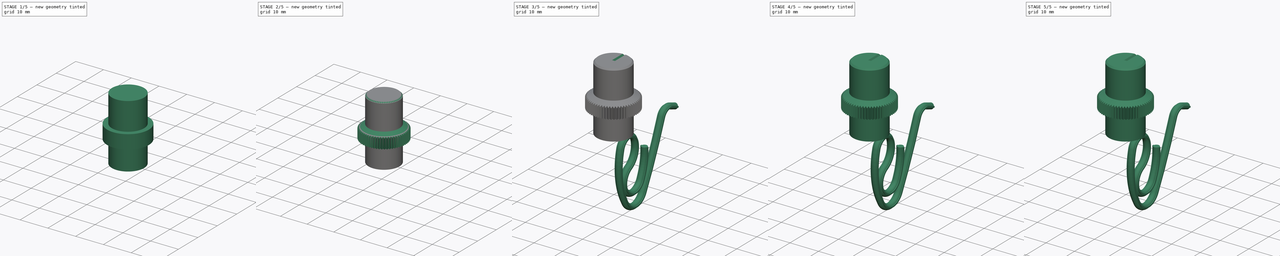
[diagram: build sequence overview — one tinted view per stage of 5, left to right]
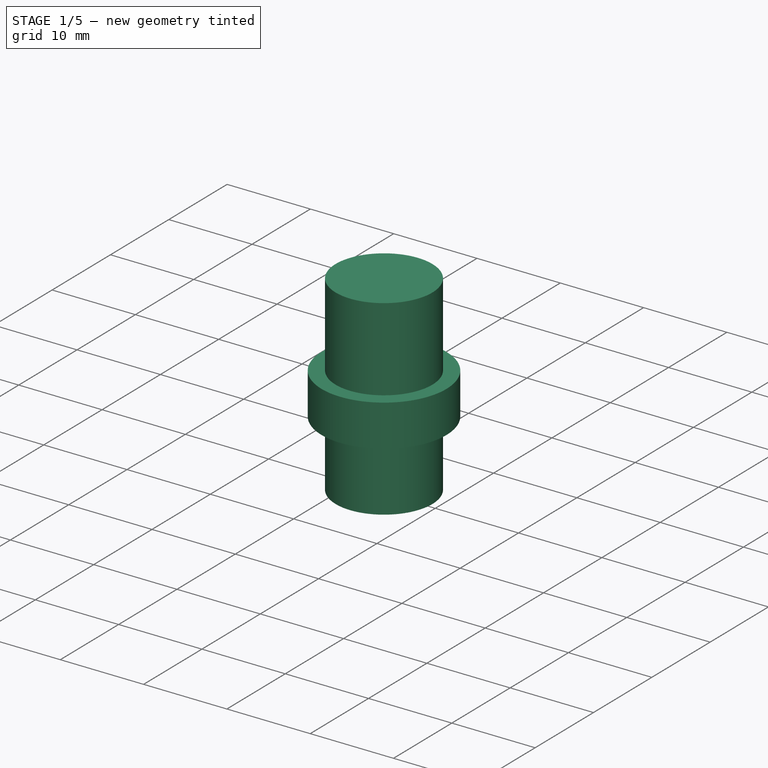
[diagram: stage 1 of 5 — iso view after this stage's code; geometry added in this stage tinted green]
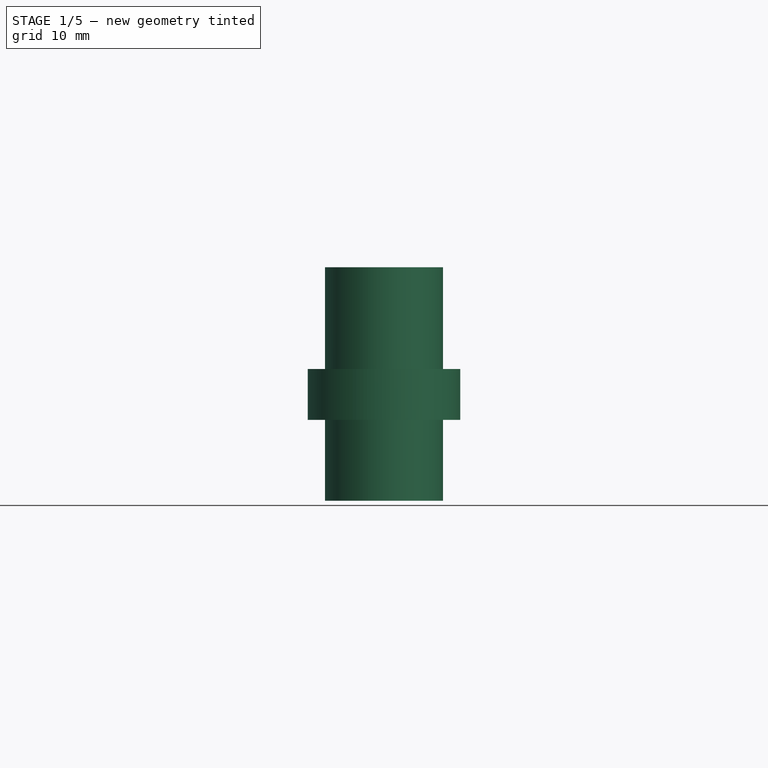
[diagram: stage 1 of 5 — front view after this stage's code; geometry added in this stage tinted green]
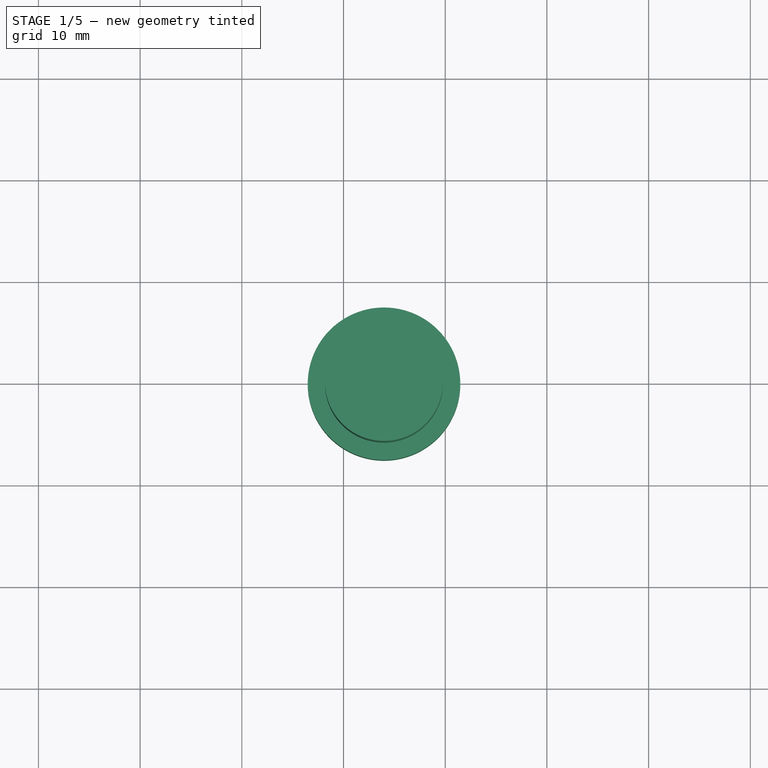
[diagram: stage 1 of 5 — top view after this stage's code; geometry added in this stage tinted green]
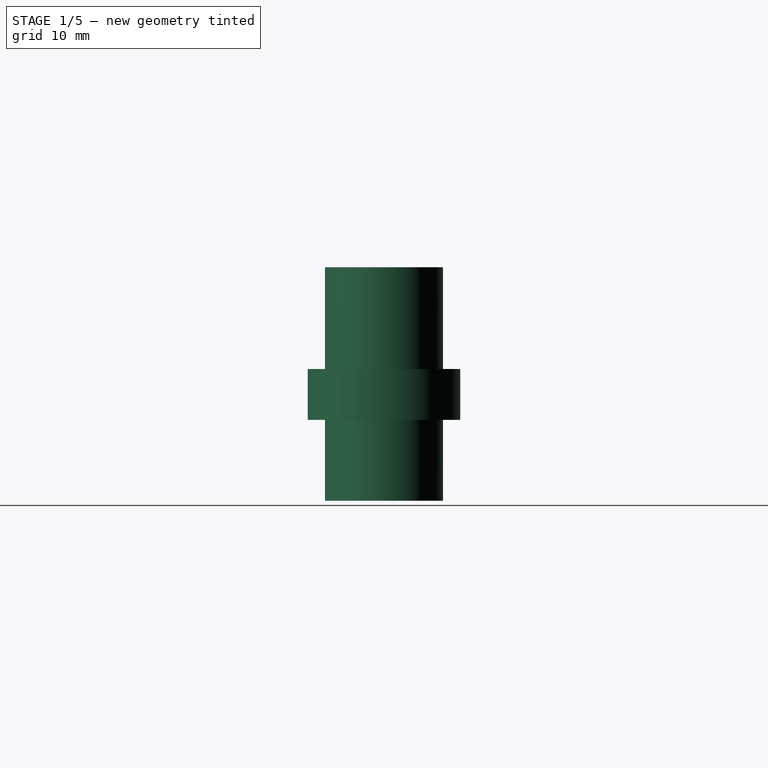
[diagram: stage 1 of 5 — right view after this stage's code; geometry added in this stage tinted green]
FCSTD DOCUMENT  (FreeCAD 1.0R39285 (Git))
Label: TheThing_v81_multiJoin_parts
License: CERN Open Hardware Licence permissive
LicenseURL: https://cern-ohl.web.cern.ch/
objects: Part::Feature×25, Sketcher::SketchObject×11, PartDesign::Body×11, PartDesign::FeatureBase×9, PartDesign::Pad×5, App::DocumentObjectGroup×4, PartDesign::Plane×3, PartDesign::SubShapeBinder×3, App::VRMLObject×2, App::Part×2, PartDesign::AdditivePipe×1, PartDesign::PolarPattern×1, PartDesign::Groove×1, PartDesign::Chamfer×1, PartDesign::SubtractivePipe×1
note: 111 computed .brp shape members not serialized (recipe doc carries the construction recipe); baked Part::Feature solids carry a one-line shape summary decoded from their .brp

FEATURE [PartDesign::Body] Body009
  AllowCompound = false
  Group = -> [Clone008]
  Origin = -> Origin051
  Placement = pos=(-22.86,0,0) rot=(0,0,1;0rad)
  Tip = -> Clone008
FEATURE [App::DocumentObjectGroup] Group003  label="Flat_Cable_10x"
  Group = -> [Body,Body001,Body002,Body003,Body004,Body005,Body006,Body007,Body008,Body009]
FEATURE [PartDesign::SubShapeBinder] Binder055
  BindCopyOnChange = 0
  BindMode = 0
  ClaimChildren = false
  Context = -> Body021 [Binder055.]
  Fuse = false
  MakeFace = true
  OffsetFill = false
  OffsetIntersection = false
  OffsetJoinType = 0
  OffsetOpenResult = false
  PartialLoad = false
  Refine = true
  Relative = true
  _Version = 2
FEATURE [PartDesign::SubShapeBinder] Binder056
  BindCopyOnChange = 0
  BindMode = 0
  ClaimChildren = false
  Context = -> Body021 [Binder056.]
  Fuse = false
  MakeFace = true
  OffsetFill = false
  OffsetIntersection = false
  OffsetJoinType = 0
  OffsetOpenResult = false
  PartialLoad = false
  Refine = true
  Relative = true
  _Version = 2
FEATURE [PartDesign::SubShapeBinder] Binder057
  BindCopyOnChange = 0
  BindMode = 0
  ClaimChildren = false
  Context = -> Body021 [Binder057.]
  Fuse = false
  MakeFace = true
  OffsetFill = false
  OffsetIntersection = false
  OffsetJoinType = 0
  OffsetOpenResult = false
  PartialLoad = false
  Refine = true
  Relative = true
  _Version = 2
FEATURE [Sketcher::SketchObject] Sketch055
  ArcFitTolerance = 1e-06
  AttachmentSupport = -> [Binder055]
  ExternalGeometry = -> [Binder055]
  FullyConstrained = true
  MakeInternals = false
  MapMode = 5
  Placement = pos=(0,0,3.145) rot=(0,0,1;0rad)
  sketch-geometry (4):
    g0: ArcOfCircle CenterX=13.98 CenterY=-50.184 CenterZ=0 NormalX=0 NormalY=0 NormalZ=1 AngleXU=0 Radius=3.2 StartAngle=2.27616 EndAngle=7.14862
    g1: LineSegment StartX=11.9054 StartY=-47.7476 StartZ=0 EndX=16.0546 EndY=-47.7476 EndZ=0
    g2: Circle CenterX=13.98 CenterY=-50.184 CenterZ=0 NormalX=0 NormalY=0 NormalZ=1 AngleXU=0 Radius=5.8
    g3: Circle [constr] CenterX=13.98 CenterY=-50.184 CenterZ=0 NormalX=0 NormalY=0 NormalZ=1 AngleXU=0 Radius=5.1
  constraints (10):
    c: Coincident(g0,g-3)
    c: Coincident(g1,g0)
    c: Coincident(g1,g0)
    c: Horizontal(g1)
    c: Diameter(g0) = 6.4
    c: Diameter(g2) = 11.6
    c: Coincident(g2,g0)
    c: Diameter(g3) = 10.2
    c: Coincident(g3,g0)
    c: PointOnObject(g-8,g1)
FEATURE [PartDesign::Pad] Pad036
  Direction = (0,0,1)
  Length = 1.75
  Length2 = 0.2
  Profile = -> Sketch055
  ReferenceAxis = -> Sketch055 [N_Axis]
  Refine = true
  Reversed = true
  Suppressed = false
  Type = 4
FEATURE [Sketcher::SketchObject] Sketch056
  ArcFitTolerance = 1e-06
  AttachmentSupport = -> [Pad036]
  ExternalGeometry = -> [Pad036]
  FullyConstrained = true
  MakeInternals = false
  MapMode = 5
  Placement = pos=(0,0,1.395) rot=(1,0,0;3.14159rad)
  sketch-geometry (2):
    g0: Circle CenterX=13.98 CenterY=50.184 CenterZ=0 NormalX=0 NormalY=0 NormalZ=1 AngleXU=0 Radius=5.8
    g1: Circle CenterX=13.98 CenterY=50.184 CenterZ=0 NormalX=0 NormalY=0 NormalZ=1 AngleXU=0 Radius=5.1
  constraints (4):
    c: Coincident(g0,g-3)
    c: Equal(g0,g-3)
    c: Diameter(g1) = 10.2
    c: Coincident(g1,g0)
FEATURE [PartDesign::Pad] Pad037
  BaseFeature = -> Pad036
  Direction = (0,0,-1)
  Length = 6
  Length2 = 10
  Profile = -> Sketch056
  ReferenceAxis = -> Sketch056 [N_Axis]
  Refine = true
  Suppressed = false
  Type = 0
FEATURE [Sketcher::SketchObject] Sketch057
  ArcFitTolerance = 1e-06
  AttachmentSupport = -> [Pad037]
  ExternalGeometry = -> [Pad037]
  FullyConstrained = true
  MakeInternals = false
  MapMode = 5
  Placement = pos=(0,0,3.345) rot=(0,0,1;0rad)
  sketch-geometry (1):
    g0: Circle CenterX=13.98 CenterY=-50.184 CenterZ=0 NormalX=0 NormalY=0 NormalZ=1 AngleXU=0 Radius=7.5
  constraints (2):
    c: Diameter(g0) = 15
    c: Coincident(g0,g-3)
FEATURE [PartDesign::Pad] Pad038
  BaseFeature = -> Pad037
  Direction = (0,0,1)
  Length = 5
  Length2 = 10
  Profile = -> Sketch057
  ReferenceAxis = -> Sketch057 [N_Axis]
  Refine = true
  Suppressed = false
  Type = 0
FEATURE [Sketcher::SketchObject] Sketch059
  ArcFitTolerance = 1e-06
  AttachmentSupport = -> [Pad038]
  ExternalGeometry = -> [Pad038]
  FullyConstrained = true
  MakeInternals = false
  MapMode = 5
  Placement = pos=(0,0,8.345) rot=(0,0,1;0rad)
  sketch-geometry (6):
    g0: LineSegment [constr] StartX=13.98 StartY=-50.184 StartZ=0 EndX=13.98 EndY=-57.684 EndZ=0
    g1: LineSegment StartX=13.5875 StartY=-57.6737 StartZ=0 EndX=14.3725 EndY=-57.6737 EndZ=0
    g2: LineSegment StartX=14.3725 StartY=-57.6737 StartZ=0 EndX=13.98 EndY=-58.3536 EndZ=0
    g3: LineSegment StartX=13.98 StartY=-58.3536 StartZ=0 EndX=13.5875 EndY=-57.6737 EndZ=0
    g4: LineSegment [constr] StartX=13.5875 StartY=-57.6737 StartZ=0 EndX=13.98 EndY=-50.184 EndZ=0
    g5: LineSegment [constr] StartX=13.98 StartY=-50.184 StartZ=0 EndX=14.3725 EndY=-57.6737 EndZ=0
  constraints (15):
    c: Coincident(g0,g-3)
    c: PointOnObject(g0,g-3)
    c: Vertical(g0)
    c: Coincident(g1,g2)
    c: Coincident(g2,g3)
    c: Coincident(g3,g1)
    c: Equal(g1,g2)
    c: Equal(g2,g3)
    c: Symmetric(g1,g1,g0)
    c: PointOnObject(g1,g-3)
    c: Coincident(g4,g1)
    c: Coincident(g4,g0)
    c: Coincident(g5,g0)
    c: Coincident(g5,g1)
    c: Angle(g4,g5) = 0.10472
FEATURE [Sketcher::SketchObject] Sketch060
  ArcFitTolerance = 1e-06
  AttachmentSupport = -> [Pad038]
  FullyConstrained = true
  MakeInternals = false
  MapMode = 5
  Placement = pos=(0,0,8.345) rot=(0,0,1;0rad)
  sketch-geometry (1):
    g0: Circle CenterX=13.98 CenterY=-50.184 CenterZ=0 NormalX=0 NormalY=0 NormalZ=1 AngleXU=0 Radius=5.8
  constraints (2):
    c: Coincident(g0,g-3)
    c: Equal(g0,g-3)
FEATURE [PartDesign::Pad] Pad039
  BaseFeature = -> Pad038
  Direction = (0,0,1)
  Length = 10
  Length2 = 10
  Profile = -> Sketch060
  ReferenceAxis = -> Sketch060 [N_Axis]
  Refine = true
  Suppressed = false
  Type = 0
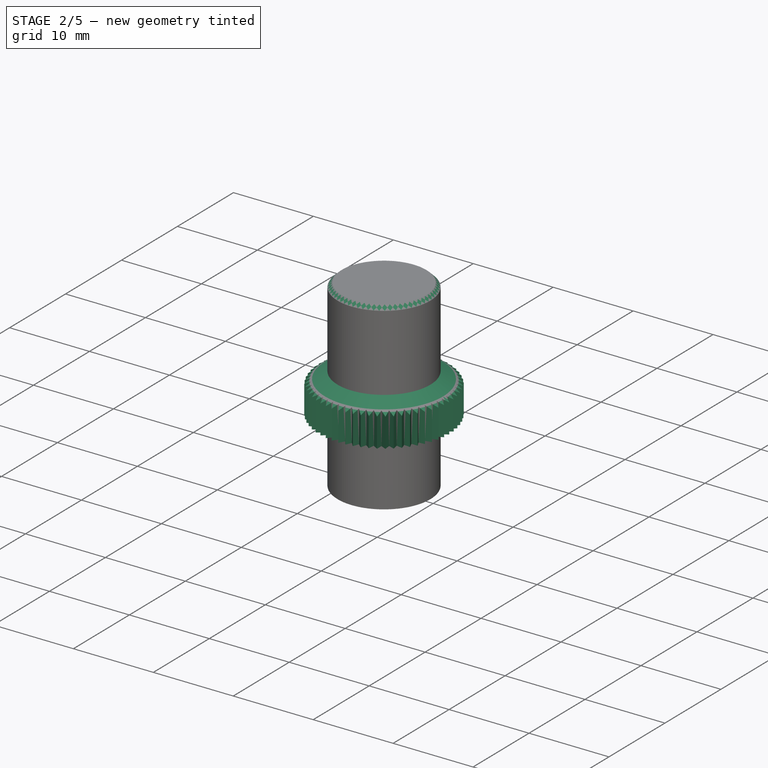
[diagram: stage 2 of 5 — iso view after this stage's code; geometry added in this stage tinted green]
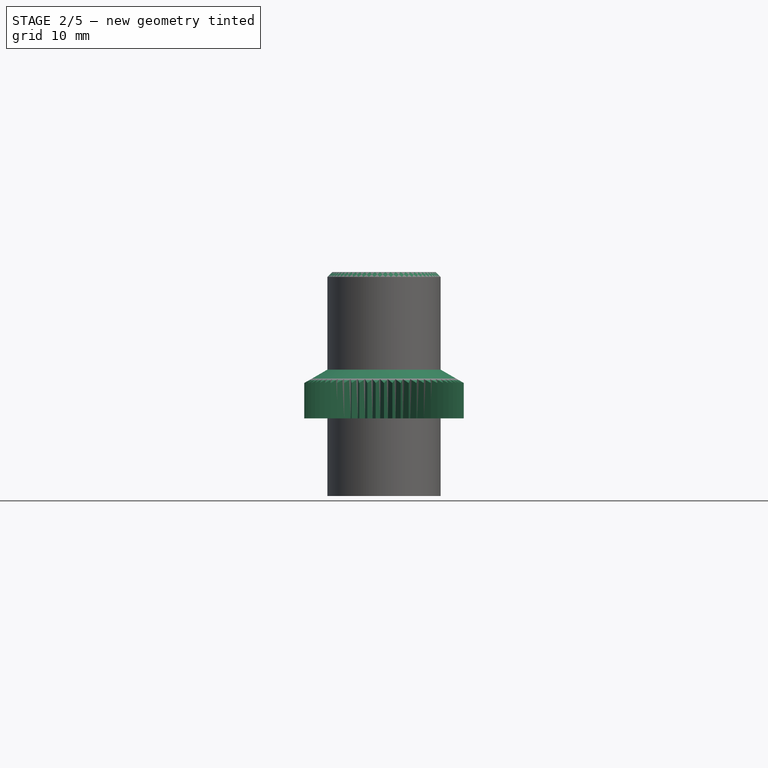
[diagram: stage 2 of 5 — front view after this stage's code; geometry added in this stage tinted green]
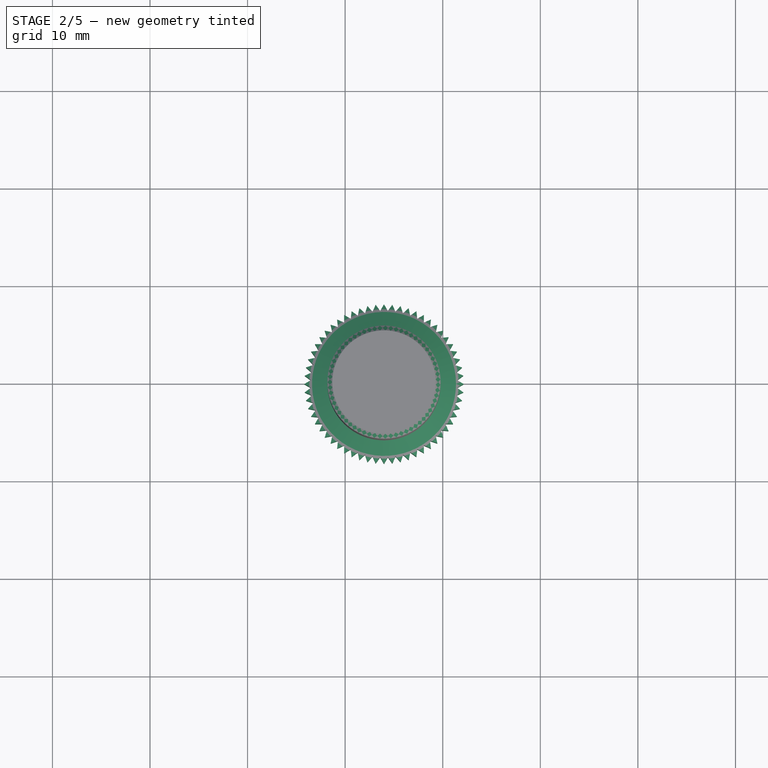
[diagram: stage 2 of 5 — top view after this stage's code; geometry added in this stage tinted green]
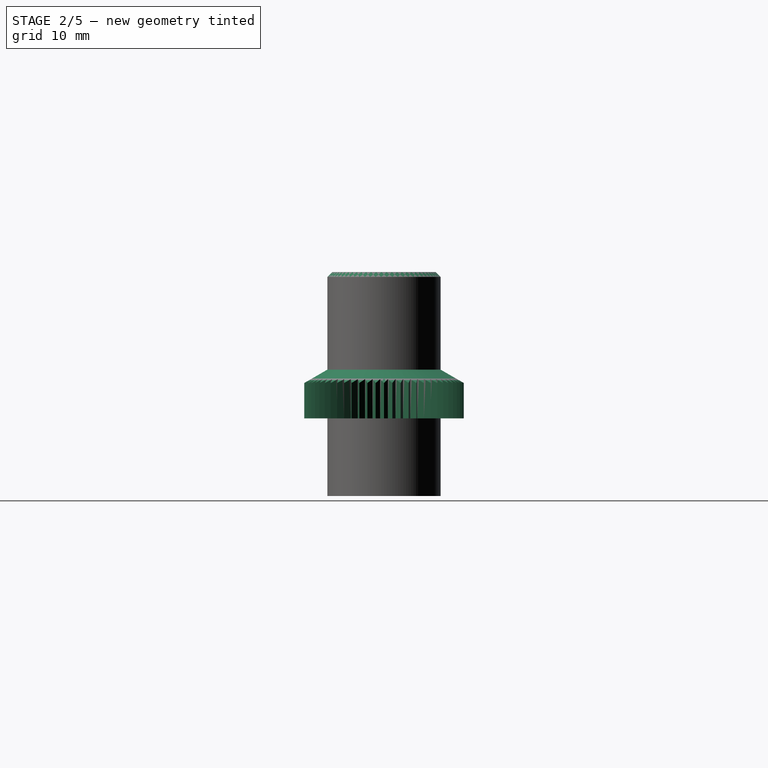
[diagram: stage 2 of 5 — right view after this stage's code; geometry added in this stage tinted green]
FEATURE [PartDesign::Pad] Pad040
  BaseFeature = -> Pad039
  Direction = (0,0,1)
  Length = 10
  Length2 = 10
  Profile = -> Sketch059
  ReferenceAxis = -> Sketch059 [N_Axis]
  Refine = true
  Reversed = true
  Suppressed = false
  Type = 3
  UpToFace = -> Pad039 [Face4]
FEATURE [PartDesign::PolarPattern] PolarPattern001
  Angle = 360
  Axis = -> Pad040 [Edge23]
  BaseFeature = -> Pad040
  Mode = 0
  Occurrences = 60
  Offset = 120
  Originals = -> [Pad040]
  Refine = true
  Suppressed = false
  TransformMode = 0
FEATURE [PartDesign::Plane] DatumPlane002
  AttachmentOffset = pos=(0,0,0) rot=(1,0,0;1.5708rad)
  AttachmentSupport = -> [PolarPattern001]
  Length = 60
  MapMode = 7
  Placement = pos=(19.78,-50.184,8.345) rot=(0,0.707107,-0.707107;3.14159rad)
  ResizeMode = 0
  Width = 60
FEATURE [Sketcher::SketchObject] Sketch061
  ArcFitTolerance = 1e-06
  AttachmentSupport = -> [DatumPlane002]
  ExternalGeometry = -> [PolarPattern001]
  FullyConstrained = true
  MakeInternals = false
  MapMode = 5
  Placement = pos=(19.78,-50.184,8.345) rot=(0,0.707107,-0.707107;3.14159rad)
  sketch-geometry (3):
    g0: LineSegment StartX=0 StartY=0 StartZ=0 EndX=-4.2 EndY=2.42487 EndZ=0
    g1: LineSegment StartX=-4.2 StartY=2.42487 StartZ=0 EndX=-4.2 EndY=0 EndZ=0
    g2: LineSegment StartX=-4.2 StartY=0 StartZ=0 EndX=0 EndY=0 EndZ=0
  constraints (8):
    c: Coincident(g0,g1)
    c: Vertical(g1)
    c: Coincident(g1,g2)
    c: Angle(g0,g-1) = 0.523599
    c: Coincident(g0,g2)
    c: Coincident(g0,g-4)
    c: PointOnObject(g1,g-1)
    c: DistanceX(g1,g0) = 4.2
FEATURE [PartDesign::Groove] Groove
  Angle = 360
  Angle2 = 60
  Axis = (0,0,1)
  Base = (13.98,-50.184,18.345)
  BaseFeature = -> PolarPattern001
  Profile = -> Sketch061
  ReferenceAxis = -> PolarPattern001 [Edge363]
  Refine = true
  Reversed = true
  Suppressed = false
  Type = 0
FEATURE [PartDesign::Chamfer] Chamfer004
  Angle = 45
  Base = -> Groove [Edge365]
  BaseFeature = -> Groove
  ChamferType = 0
  FlipDirection = false
  Refine = true
  Size = 0.5
  Size2 = 1
  SupportTransform = false
  Suppressed = false
  UseAllEdges = false
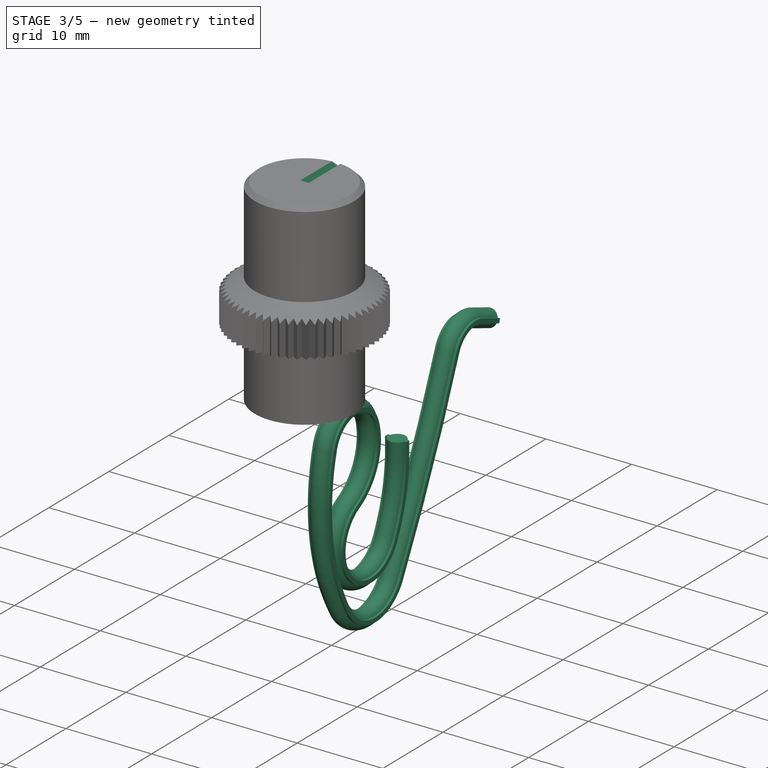
[diagram: stage 3 of 5 — iso view after this stage's code; geometry added in this stage tinted green]
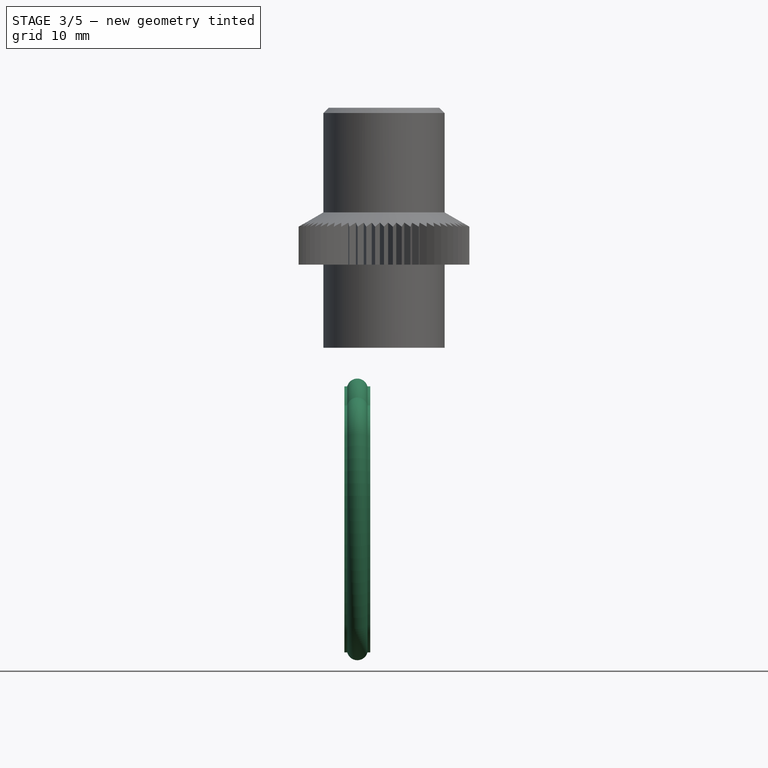
[diagram: stage 3 of 5 — front view after this stage's code; geometry added in this stage tinted green]
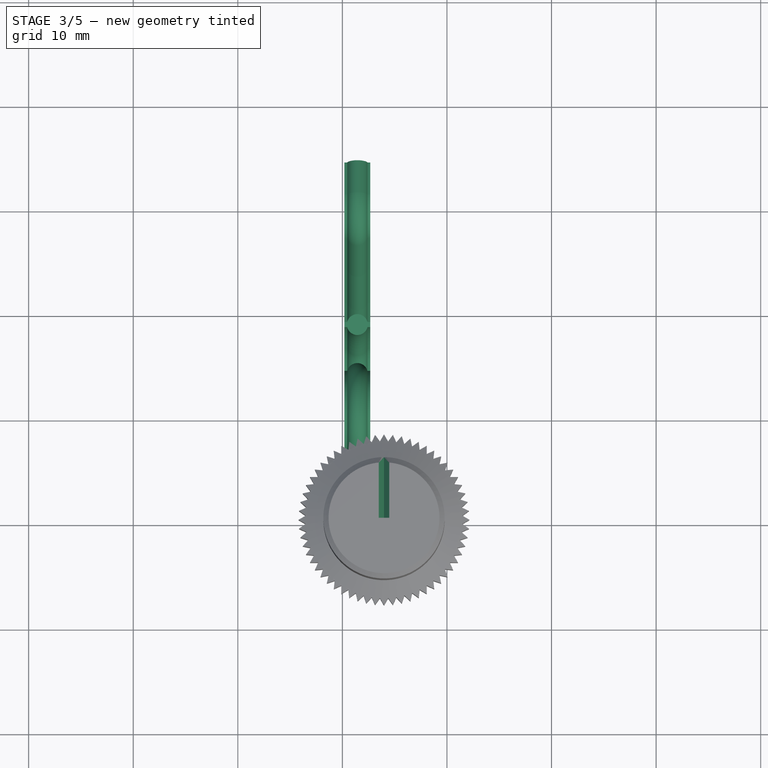
[diagram: stage 3 of 5 — top view after this stage's code; geometry added in this stage tinted green]
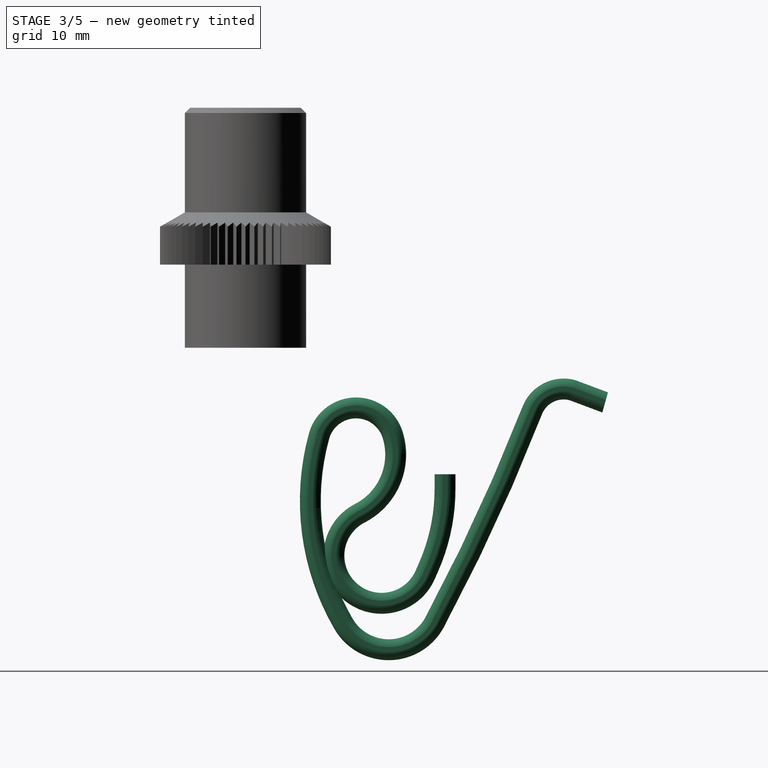
[diagram: stage 3 of 5 — right view after this stage's code; geometry added in this stage tinted green]
FEATURE [Part::Feature] Pad001_tab
  shape: bbox 2.8 x 80.6 x 100.6 mm, 98 faces (baked)
FEATURE [Part::Feature] Pad002_tab
  shape: bbox 2.8 x 80.6 x 100.6 mm, 86 faces (baked)
FEATURE [Part::Feature] Pocket_tab
  shape: bbox 75.6 x 2.8 x 104.6 mm, 110 faces (baked)
FEATURE [Part::Feature] Pocket016_tab
  shape: bbox 75.6 x 22.4 x 55.27 mm, 82 faces (baked)
FEATURE [Part::Feature] Pad018_tab
  shape: bbox 75.6 x 33.14 x 2.8 mm, 64 faces (baked)
FEATURE [Part::Feature] Pocket017_tab
  shape: bbox 75.6 x 2.8 x 44.6 mm, 118 faces (baked)
FEATURE [Part::Feature] Pocket021_tab
  shape: bbox 75.6 x 77.8 x 2.8 mm, 54 faces (baked)
FEATURE [Part::Feature] Fillet_tab
  shape: bbox 75.6 x 47.6 x 2.8 mm, 54 faces (baked)
FEATURE [Part::Feature] Pad016_tab
  shape: bbox 75.6 x 17.8 x 8.761 mm, 22 faces (baked)
FEATURE [Part::Feature] Body_right_clip_tab
  shape: bbox 2.8 x 90.2 x 110.2 mm, 46 faces (baked)
FEATURE [Part::Feature] Body_left_clip_tab
  Placement = pos=(-68.8,0,0) rot=(0,0,1;0rad)
  shape: bbox 2.8 x 90.2 x 110.2 mm, 46 faces (baked)
FEATURE [Part::Feature] Part__Feature001  label="switch_slide"
  shape: bbox 10.8 x 10.21 x 13.32 mm, 46 faces (baked)
FEATURE [Part::Feature] Part__Feature002  label="Stopper_bat"
  shape: bbox 2.8 x 15.6 x 14 mm, 30 faces (baked)
FEATURE [App::VRMLObject] TheThing_v8_main
  Placement = pos=(0,5.3,13.8) rot=(1,0,0;1.22173rad)
FEATURE [App::VRMLObject] TheThing_v8_addon
  Placement = pos=(0,-43.6,-5.2) rot=(0,0,1;0rad)
FEATURE [Part::Feature] Part__Feature003  label="hc-sr04"
  Placement = pos=(0,-52.3,-24.1) rot=(0,0,1;3.14159rad)
  shape: bbox 45.2 x 18.55 x 25.81 mm, 1464 faces (baked)
FEATURE [Part::Feature] Part__Feature004  label="User Library-9V Duracell Battery"
  shape: bbox 25.33 x 0.8457 x 15.74 mm, 1 faces, 0 solids (baked)
FEATURE [Part::Feature] Part__Feature005  label="User Library-9V Duracell Battery001"
  shape: bbox 24.78 x 2e-07 x 15.38 mm, 1 faces, 0 solids (baked)
FEATURE [Part::Feature] Part__Feature006  label="User Library-9V Duracell Battery002"
  shape: bbox 26 x 42.82 x 16.6 mm, 188 faces, 0 solids (baked)
FEATURE [Part::Feature] Part__Feature007  label="User Library-9V Duracell Battery003"
  shape: bbox 8.776 x 3 x 7.6 mm, 28 faces, 0 solids (baked)
FEATURE [Part::Feature] Part__Feature008  label="User Library-9V Duracell Battery004"
  shape: bbox 6.35 x 1.5 x 6.35 mm, 2 faces, 0 solids (baked)
FEATURE [Part::Feature] Part__Feature009  label="User Library-9V Duracell Battery005"
  shape: bbox 8 x 3.2 x 8 mm, 10 faces, 0 solids (baked)
FEATURE [App::Part] User_Library_9V_Duracell_Battery  label="9V Duracell Battery006"
  Group = -> [Part__Feature004,Part__Feature005,Part__Feature006,Part__Feature007,Part__Feature008,Part__Feature009]
  Origin = -> Origin
  Placement = pos=(0,0.6,-26) rot=(0,0,1;0rad)
FEATURE [Part::Feature] Part__Feature951  label="_68005_cp005_cp"
  shape: bbox 13.59 x 26.29 x 1.575 mm, 25 faces (baked)
FEATURE [Part::Feature] Part__Feature954  label="_68005_cp005_cp003"
  shape: bbox 7.925 x 7.925 x 3.557 mm, 30 faces (baked)
FEATURE [Part::Feature] Part__Feature955  label="_68005_cp005_cp004"
  shape: bbox 9.35 x 9.35 x 4.186 mm, 132 faces (baked)
FEATURE [App::Part] _68005_cp005_cp  label="9V_conn"
  Group = -> [Part__Feature951,Part__Feature954,Part__Feature955]
  Origin = -> Origin041
  Placement = pos=(-2.41e-14,30,-26) rot=(0.57735,-0.57735,-0.57735;4.18879rad)
FEATURE [App::DocumentObjectGroup] Group  label="Acrylic_Parts"
  Group = -> [Pad001_tab,Pad002_tab,Pocket_tab,Pocket016_tab,Pad018_tab,Pocket017_tab,Pocket021_tab,Fillet_tab,Pad016_tab,Body_right_clip_tab,Body_left_clip_tab]
FEATURE [App::DocumentObjectGroup] Group001  label="Electronic_Parts"
  Group = -> [TheThing_v8_main,TheThing_v8_addon,Part__Feature003,User_Library_9V_Duracell_Battery,_68005_cp005_cp]
FEATURE [Sketcher::SketchObject] Sketch
  ArcFitTolerance = 1e-06
  AttachmentOffset = pos=(0,0,11.43) rot=(0,0,1;0rad)
  AttachmentSupport = -> [YZ_Plane042]
  FullyConstrained = false
  MakeInternals = false
  MapMode = 5
  Placement = pos=(11.43,0,0) rot=(0.57735,0.57735,0.57735;2.0944rad)
  sketch-geometry (10):
    g0: LineSegment StartX=-16.0018 StartY=-10.3753 StartZ=0 EndX=-19.3517 EndY=-9.12639 EndZ=0
    g1: ArcOfCircle CenterX=-20.2949 CenterY=-11.6563 CenterZ=0 NormalX=0 NormalY=0 NormalZ=1 AngleXU=0 Radius=2.7 StartAngle=1.21393 EndAngle=2.79324
    g2: ArcOfCircle CenterX=-98.0276 CenterY=16.5734 CenterZ=0 NormalX=0 NormalY=0 NormalZ=1 AngleXU=0 Radius=80 StartAngle=5.64377 EndAngle=5.93483
    g3: ArcOfCircle CenterX=-37.0419 CenterY=-28.7779 CenterZ=0 NormalX=0 NormalY=0 NormalZ=1 AngleXU=0 Radius=4 StartAngle=3.76697 EndAngle=5.64377
    g4: ArcOfCircle CenterX=-20.0163 CenterY=-16.4845 CenterZ=0 NormalX=0 NormalY=0 NormalZ=1 AngleXU=0 Radius=25 StartAngle=2.91169 EndAngle=3.76697
    g5: ArcOfCircle CenterX=-41.4374 CenterY=-11.471 CenterZ=0 NormalX=0 NormalY=0 NormalZ=1 AngleXU=0 Radius=3 StartAngle=0.810387 EndAngle=2.91169
    g6: ArcOfCircle CenterX=-45.2281 CenterY=-15.4561 CenterZ=0 NormalX=0 NormalY=0 NormalZ=1 AngleXU=0 Radius=8.5 StartAngle=5.51939 EndAngle=7.09357
    g7: ArcOfCircle CenterX=-36.2004 CenterY=-24.102 CenterZ=0 NormalX=0 NormalY=0 NormalZ=1 AngleXU=0 Radius=4 StartAngle=2.37779 EndAngle=5.7039
    g8: LineSegment StartX=-31.0981 StartY=-20.4032 StartZ=0 EndX=-31.0981 EndY=-16.8824 EndZ=0
    g9: ArcOfCircle CenterX=-41.8547 CenterY=-20.4032 CenterZ=0 NormalX=0 NormalY=0 NormalZ=1 AngleXU=0 Radius=10.7566 StartAngle=5.7039 EndAngle=6.28319
  constraints (21):
    c: Tangent(g0,g1) = -1.5708
    c: Tangent(g1,g2) = 1.5708
    c: Tangent(g2,g3) = -1.5708
    c: Tangent(g3,g4) = -1.5708
    c: Tangent(g4,g5) = -1.5708
    c: Tangent(g5,g6) = -1.5708
    c: Tangent(g6,g7) = 1.5708
    c: Vertical(g8)
    c: DistanceX(g0) = -19.3517
    c: DistanceY(g0) = -9.12639
    c: Radius(g1) = 2.7
    c: Radius(g2) = 80
    c: Radius(g3) = 4
    c: Radius(g4) = 25
    c: Radius(g5) = 3
    c: Radius(g6) = 8.5
    c: Radius(g7) = 4
    c: DistanceX(g8) = -31.0981
    c: DistanceY(g8) = -16.8824
    c: Tangent(g9,g8) = -1.5708
    c: Tangent(g9,g7) = -1.5708
FEATURE [Part::Feature] Part__Feature956  label="PinSocket_1x10_P2.54mm_Vertical"
  Placement = pos=(-11.4,-16.0152,-10.4002) rot=(-0.633687,0.633687,0.443713;2.30637rad)
  shape: bbox 25.4 x 11.37 x 5.294 mm, 270 faces (baked)
FEATURE [Part::Feature] Part__Feature957  label="PinSocket_1x10_P2.54mm_Vertical001"
  Placement = pos=(-11.4,-31.1152,-17.0002) rot=(0,0,-1;4.71239rad)
  shape: bbox 25.4 x 2.54 x 11.6 mm, 270 faces (baked)
FEATURE [PartDesign::Plane] DatumPlane
  AttachmentOffset = pos=(0,-16.7,0) rot=(1,0,0;1.5708rad)
  AttachmentSupport = -> [Sketch]
  Length = 81.7809
  MapMode = 2
  Placement = pos=(11.43,0,-16.7) rot=(0.707107,0.707107,0;3.14159rad)
  ResizeMode = 0
  Width = 61.8282
FEATURE [Sketcher::SketchObject] Sketch001
  ArcFitTolerance = 1e-06
  AttachmentSupport = -> [DatumPlane]
  FullyConstrained = true
  MakeInternals = false
  MapMode = 5
  Placement = pos=(11.43,0,-16.7) rot=(0.707107,0.707107,0;3.14159rad)
  sketch-geometry (9):
    g0: ArcOfCircle CenterX=-31.1 CenterY=0 CenterZ=0 NormalX=0 NormalY=0 NormalZ=1 AngleXU=0 Radius=1 StartAngle=1.82348 EndAngle=4.45971
    g1: LineSegment StartX=-30.85 StartY=-1.23825 StartZ=0 EndX=-30.85 EndY=-0.968246 EndZ=0
    g2: LineSegment StartX=-30.85 StartY=1.23825 StartZ=0 EndX=-31.35 EndY=1.23825 EndZ=0
    g3: LineSegment StartX=-31.35 StartY=1.23825 StartZ=0 EndX=-31.35 EndY=0.968246 EndZ=0
    g4: LineSegment StartX=-31.35 StartY=-1.23825 StartZ=0 EndX=-30.85 EndY=-1.23825 EndZ=0
    g5: GeomPoint [constr] X=-31.1 Y=0 Z=0
    g6: ArcOfCircle CenterX=-31.1 CenterY=0 CenterZ=0 NormalX=0 NormalY=0 NormalZ=1 AngleXU=0 Radius=1 StartAngle=4.96507 EndAngle=7.6013
    g7: LineSegment StartX=-31.35 StartY=-0.968246 StartZ=0 EndX=-31.35 EndY=-1.23825 EndZ=0
    g8: LineSegment StartX=-30.85 StartY=0.968246 StartZ=0 EndX=-30.85 EndY=1.23825 EndZ=0
  constraints (27):
    c: Diameter(g0) = 2
    c: Distance(g0,g-2) = 31.1
    c: PointOnObject(g0,g-1)
    c: Coincident(g8,g2)
    c: Coincident(g2,g3)
    c: Coincident(g7,g4)
    c: Coincident(g4,g1)
    c: Vertical(g1)
    c: Vertical(g3)
    c: Horizontal(g2)
    c: Horizontal(g4)
    c: Symmetric(g3,g1,g5)
    c: Coincident(g5,g0)
    c: Distance(g2,g2) = 0.5
    c: PointOnObject(g6,g8)
    c: Equal(g0,g6)
    c: PointOnObject(g0,g7)
    c: Coincident(g0,g6)
    c: Coincident(g3,g0)
    c: PointOnObject(g7,g0)
    c: Coincident(g1,g6)
    c: PointOnObject(g8,g6)
    c: Equal(g7,g3)
    c: DistanceY(g3,g3) = 0.27
    c: Vertical(g8)
    c: Vertical(g7)
    c: Equal(g4,g2)
FEATURE [Sketcher::SketchObject] Sketch002
  ArcFitTolerance = 1e-06
  AttachmentSupport = -> [YZ_Plane042]
  ExternalGeometry = -> [Sketch001]
  FullyConstrained = false
  MakeInternals = false
  MapMode = 5
  Placement = pos=(0,0,0) rot=(0.57735,0.57735,0.57735;2.0944rad)
  sketch-geometry (11):
    g0: LineSegment StartX=-31.725 StartY=-16.7 StartZ=0 EndX=-31.725 EndY=-18.1086 EndZ=0
    g1: ArcOfCircle CenterX=-49.6106 CenterY=-18.1086 CenterZ=0 NormalX=0 NormalY=0 NormalZ=1 AngleXU=0 Radius=17.8856 StartAngle=5.87083 EndAngle=6.28319
    g2: LineSegment StartX=-33.2241 StartY=-25.2765 StartZ=0 EndX=-33.565 EndY=-26.0557 EndZ=0
    g3: ArcOfCircle CenterX=-37.1674 CenterY=-24.4799 CenterZ=0 NormalX=0 NormalY=0 NormalZ=1 AngleXU=0 Radius=3.93203 StartAngle=2.04472 EndAngle=5.87083
    g4: ArcOfCircle CenterX=-42.1253 CenterY=-14.8137 CenterZ=0 NormalX=0 NormalY=0 NormalZ=1 AngleXU=0 Radius=6.93145 StartAngle=5.18631 EndAngle=6.58854
    g5: ArcOfCircle CenterX=-39.6091 CenterY=-14.0206 CenterZ=0 NormalX=0 NormalY=0 NormalZ=1 AngleXU=0 Radius=4.29316 StartAngle=0.30535 EndAngle=2.87372
    g6: ArcOfCircle CenterX=-20.6035 CenterY=-19.2371 CenterZ=0 NormalX=0 NormalY=0 NormalZ=1 AngleXU=0 Radius=24.0016 StartAngle=2.87372 EndAngle=3.66866
    g7: ArcOfCircle CenterX=-36.4922 CenterY=-28.4841 CenterZ=0 NormalX=0 NormalY=0 NormalZ=1 AngleXU=0 Radius=5.61802 StartAngle=3.66866 EndAngle=5.79204
    g8: ArcOfCircle CenterX=-198.028 CenterY=57.9154 CenterZ=0 NormalX=0 NormalY=0 NormalZ=1 AngleXU=0 Radius=188.808 StartAngle=5.79204 EndAngle=5.91054
    g9: ArcOfCircle CenterX=-19.756 CenterY=-11.7725 CenterZ=0 NormalX=0 NormalY=0 NormalZ=1 AngleXU=0 Radius=2.60032 StartAngle=1.29713 EndAngle=2.76895
    g10: LineSegment StartX=-19.0533 StartY=-9.26896 StartZ=0 EndX=-15.958 EndY=-10.4308 EndZ=0
  constraints (12):
    c: Symmetric(g-3,g-3,g0)
    c: Vertical(g0)
    c: Tangent(g0,g1) = 1.5708
    c: Tangent(g2,g3) = 1.5708
    c: Tangent(g3,g4) = 1.5708
    c: Tangent(g4,g5) = -1.5708
    c: Tangent(g5,g6) = -1.5708
    c: Tangent(g6,g7) = -1.5708
    c: Tangent(g7,g8) = -1.5708
    c: Tangent(g8,g9) = 1.5708
    c: Coincident(g9,g10)
    c: Tangent(g1,g2) = 1.5708
FEATURE [PartDesign::AdditivePipe] AdditivePipe
  AuxilleryCurvelinear = true
  AuxillerySpineTangent = false
  Binormal = (0,0,0)
  Mode = 0
  Placement = pos=(11.43,0,-16.7) rot=(0.707107,0.707107,0;3.14159rad)
  Profile = -> Sketch001
  Refine = true
  Spine = -> Sketch002
  SpineTangent = false
  Suppressed = false
  Transformation = 0
  Transition = 0
FEATURE [PartDesign::Body] Body008
  AllowCompound = false
  Group = -> [Clone007]
  Origin = -> Origin050
  Placement = pos=(-20.32,0,0) rot=(0,0,1;0rad)
  Tip = -> Clone007
FEATURE [PartDesign::FeatureBase] Clone008
  BaseFeature = -> Body
  Suppressed = false
FEATURE [Sketcher::SketchObject] Sketch062
  ArcFitTolerance = 1e-06
  AttachmentSupport = -> [Chamfer004]
  ExternalGeometry = -> [Chamfer004]
  FullyConstrained = true
  MakeInternals = false
  MapMode = 5
  Placement = pos=(0,0,18.345) rot=(0,0,1;0rad)
  sketch-geometry (1):
    g0: LineSegment StartX=13.98 StartY=-50.184 StartZ=0 EndX=13.98 EndY=-43.784 EndZ=0
  constraints (3):
    c: Coincident(g0,g-3)
    c: Vertical(g0)
    c: DistanceY(g0,g0) = 6.4
FEATURE [PartDesign::Plane] DatumPlane003
  AttachmentSupport = -> [Sketch062]
  Length = 60
  MapMode = 7
  Placement = pos=(13.98,-50.184,18.345) rot=(1,0,0;1.5708rad)
  ResizeMode = 0
  Width = 60
FEATURE [Sketcher::SketchObject] Sketch063
  ArcFitTolerance = 1e-06
  AttachmentSupport = -> [DatumPlane003]
  ExternalGeometry = -> [Chamfer004]
  FullyConstrained = true
  MakeInternals = false
  MapMode = 5
  Placement = pos=(13.98,-50.184,18.345) rot=(1,0,0;1.5708rad)
  sketch-geometry (4):
    g0: LineSegment StartX=0 StartY=-0.866025 StartZ=0 EndX=0.5 EndY=0 EndZ=0
    g1: LineSegment StartX=0.5 StartY=0 StartZ=0 EndX=-0.5 EndY=0 EndZ=0
    g2: LineSegment StartX=-0.5 StartY=0 StartZ=0 EndX=0 EndY=-0.866025 EndZ=0
    g3: Circle [constr] CenterX=-4.39e-14 CenterY=-0.288675 CenterZ=0 NormalX=0 NormalY=0 NormalZ=1 AngleXU=0 Radius=0.57735
  constraints (12):
    c: Coincident(g0,g1)
    c: Coincident(g1,g2)
    c: Coincident(g2,g0)
    c: Equal(g0,g1)
    c: Equal(g0,g2)
    c: PointOnObject(g0,g3)
    c: PointOnObject(g1,g3)
    c: PointOnObject(g2,g3)
    c: PointOnObject(g0,g-2)
    c: Horizontal(g1)
    c: PointOnObject(g1,g-3)
    c: DistanceX(g1,g1) = 1
FEATURE [PartDesign::SubtractivePipe] SubtractivePipe
  AuxilleryCurvelinear = true
  AuxillerySpineTangent = false
  BaseFeature = -> Chamfer004
  Binormal = (0,0,0)
  Mode = 0
  Profile = -> Sketch063
  Refine = true
  Spine = -> Sketch062 [Edge1]
  SpineTangent = false
  Suppressed = false
  Transformation = 0
  Transition = 0
FEATURE [PartDesign::Body] Body021  label="trimpot_knob_v3"
  AllowCompound = false
  Group = -> [Binder055,Sketch055,Pad036,Binder056,Binder057,Sketch056,Pad037,Sketch057,Pad038,Sketch059,Sketch060,Pad039,Pad040,PolarPattern001,DatumPlane002,Sketch061,Groove,Chamfer004,Sketch062,DatumPlane003,Sketch063,SubtractivePipe]
  Origin = -> Origin132
  Tip = -> SubtractivePipe
FEATURE [App::DocumentObjectGroup] Group002  label="3DP_parts"
  Group = -> [Part__Feature001,Part__Feature002,Body021]
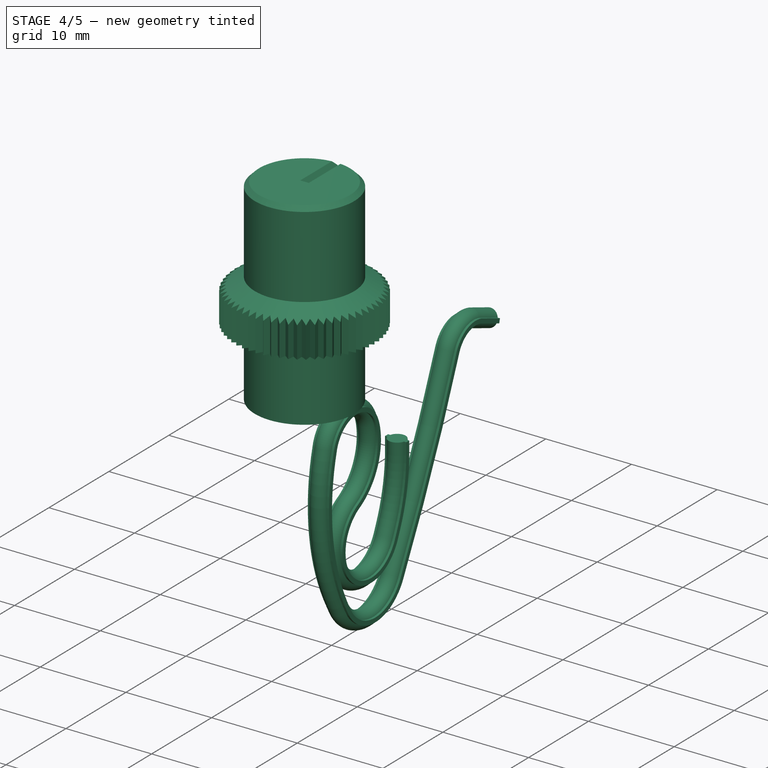
[diagram: stage 4 of 5 — iso view after this stage's code; geometry added in this stage tinted green]
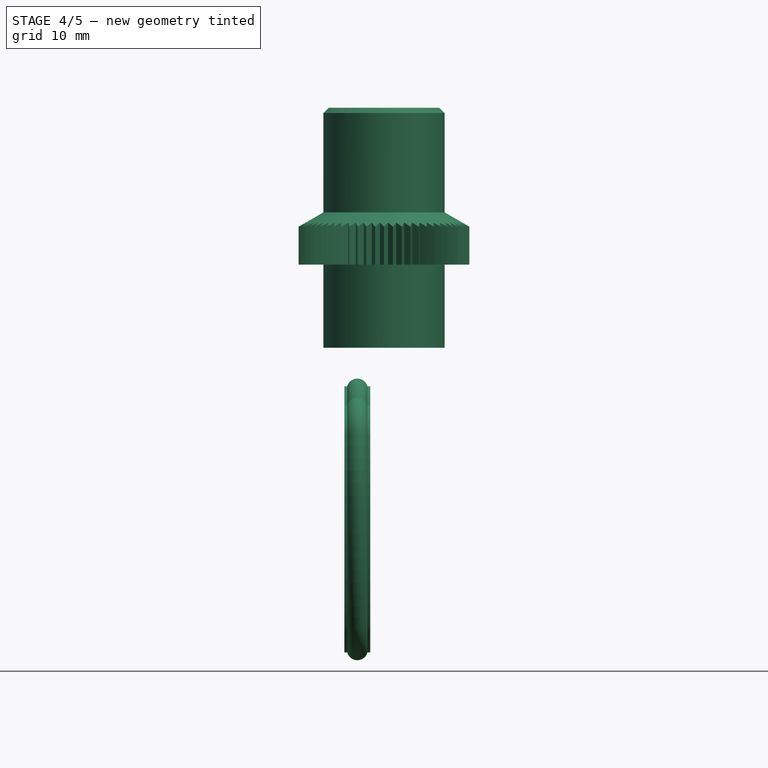
[diagram: stage 4 of 5 — front view after this stage's code; geometry added in this stage tinted green]
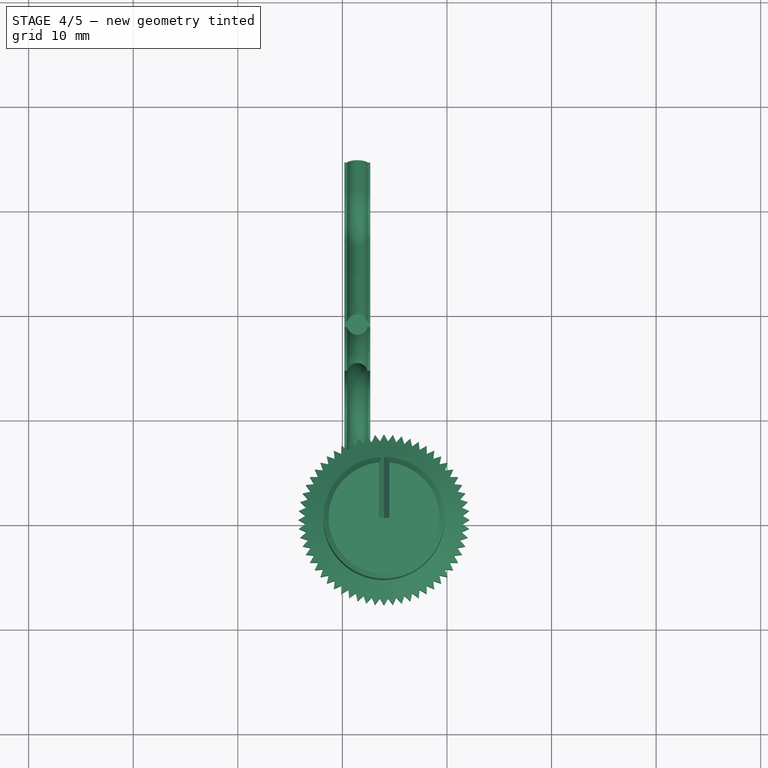
[diagram: stage 4 of 5 — top view after this stage's code; geometry added in this stage tinted green]
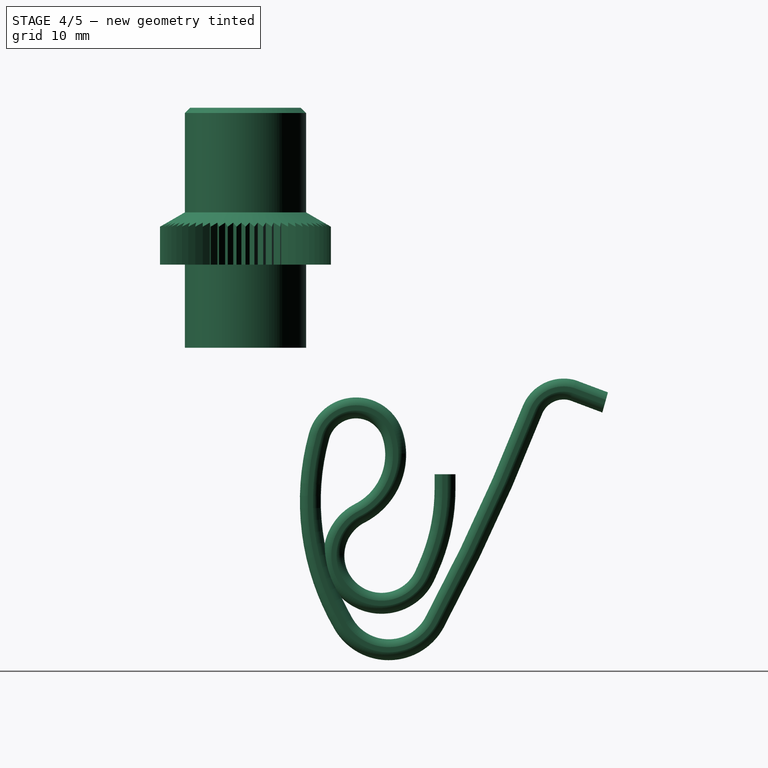
[diagram: stage 4 of 5 — right view after this stage's code; geometry added in this stage tinted green]
FEATURE [PartDesign::Body] Body004
  AllowCompound = false
  Group = -> [Clone003]
  Origin = -> Origin046
  Placement = pos=(-10.16,0,0) rot=(0,0,1;0rad)
  Tip = -> Clone003
FEATURE [PartDesign::FeatureBase] Clone004
  BaseFeature = -> Body
  Suppressed = false
FEATURE [PartDesign::Body] Body005
  AllowCompound = false
  Group = -> [Clone004]
  Origin = -> Origin047
  Placement = pos=(-12.7,0,0) rot=(0,0,1;0rad)
  Tip = -> Clone004
FEATURE [PartDesign::FeatureBase] Clone005
  BaseFeature = -> Body
  Suppressed = false
FEATURE [PartDesign::Body] Body006
  AllowCompound = false
  Group = -> [Clone005]
  Origin = -> Origin048
  Placement = pos=(-15.24,0,0) rot=(0,0,1;0rad)
  Tip = -> Clone005
FEATURE [PartDesign::FeatureBase] Clone006
  BaseFeature = -> Body
  Suppressed = false
FEATURE [PartDesign::Body] Body007
  AllowCompound = false
  Group = -> [Clone006]
  Origin = -> Origin049
  Placement = pos=(-17.78,0,0) rot=(0,0,1;0rad)
  Tip = -> Clone006
FEATURE [PartDesign::FeatureBase] Clone007
  BaseFeature = -> Body
  Suppressed = false
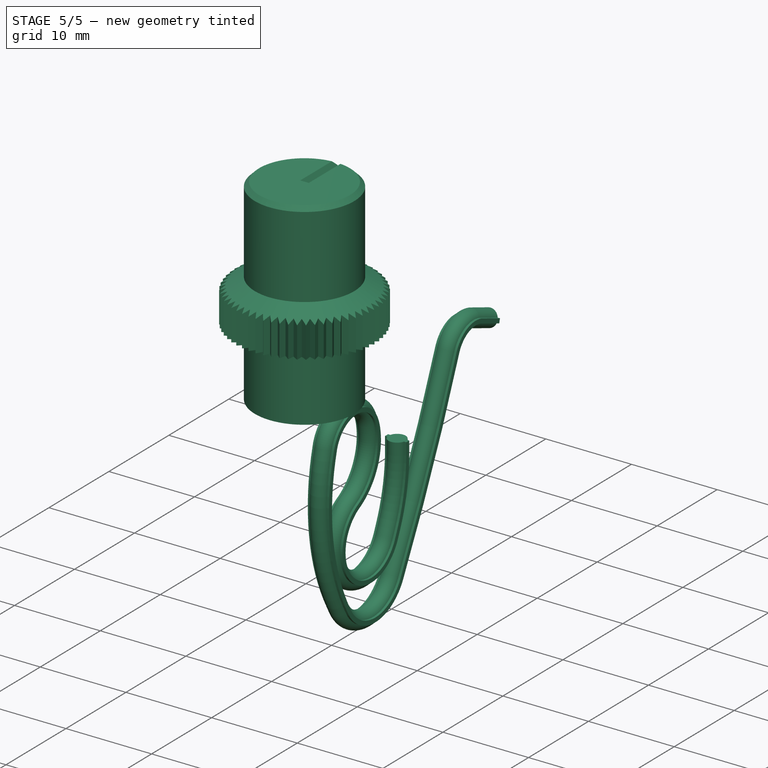
[diagram: stage 5 of 5 — iso view after this stage's code; geometry added in this stage tinted green]
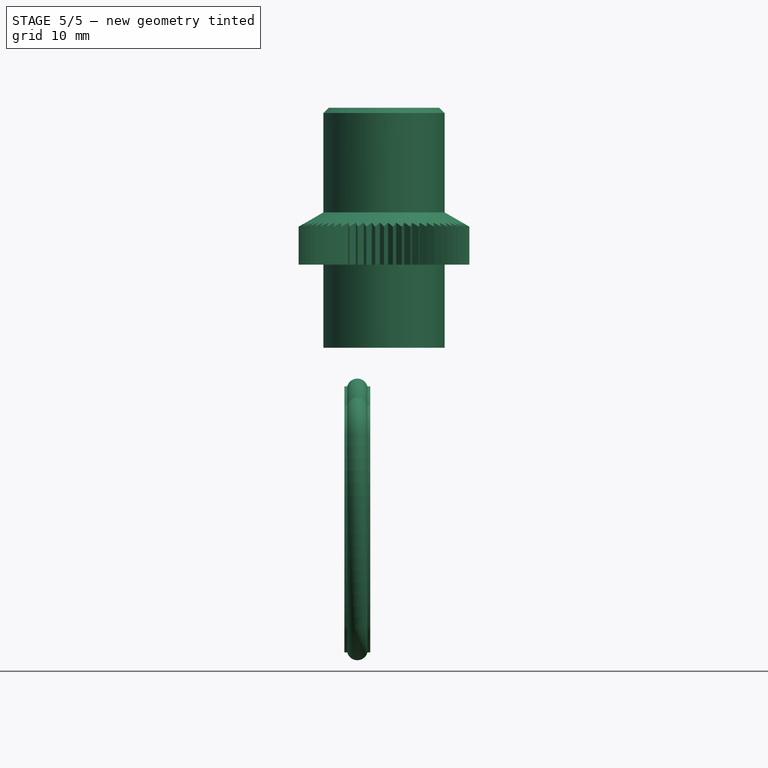
[diagram: stage 5 of 5 — front view after this stage's code; geometry added in this stage tinted green]
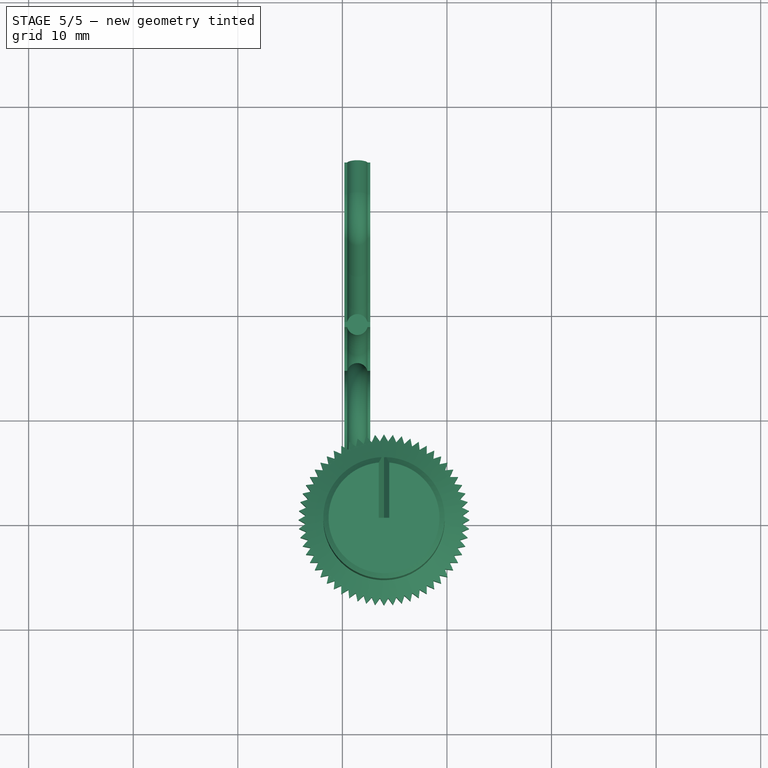
[diagram: stage 5 of 5 — top view after this stage's code; geometry added in this stage tinted green]
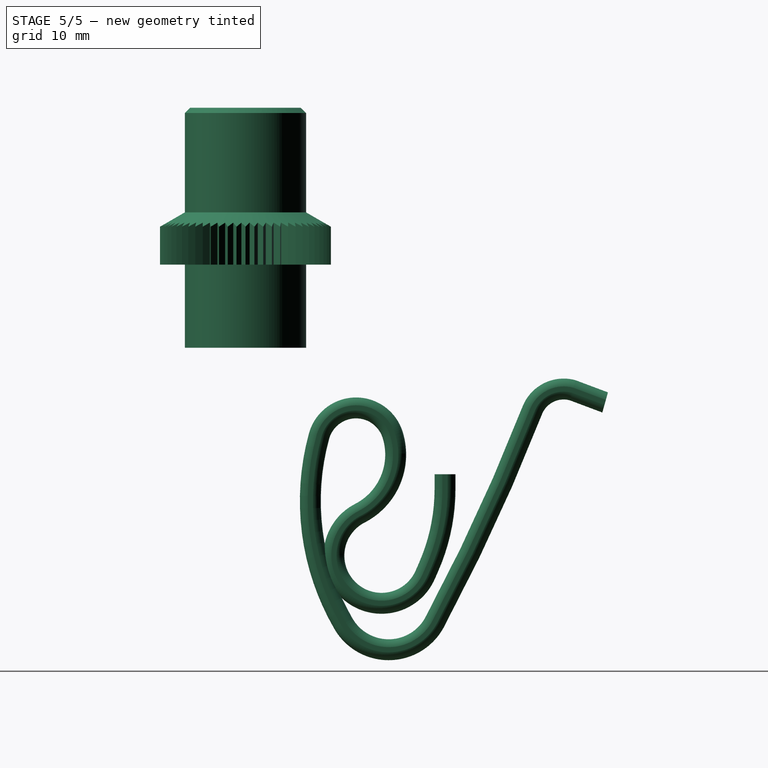
[diagram: stage 5 of 5 — right view after this stage's code; geometry added in this stage tinted green]
FEATURE [PartDesign::Body] Body  label="Cable_flat_10x"
  AllowCompound = false
  Group = -> [Sketch,DatumPlane,Sketch001,Sketch002,AdditivePipe]
  Origin = -> Origin042
  Tip = -> AdditivePipe
FEATURE [PartDesign::FeatureBase] Clone
  BaseFeature = -> Body
  Suppressed = false
FEATURE [PartDesign::Body] Body001
  AllowCompound = false
  Group = -> [Clone]
  Origin = -> Origin043
  Placement = pos=(-2.54,0,0) rot=(0,0,1;0rad)
  Tip = -> Clone
FEATURE [PartDesign::FeatureBase] Clone001
  BaseFeature = -> Body
  Suppressed = false
FEATURE [PartDesign::Body] Body002
  AllowCompound = false
  Group = -> [Clone001]
  Origin = -> Origin044
  Placement = pos=(-5.08,0,0) rot=(0,0,1;0rad)
  Tip = -> Clone001
FEATURE [PartDesign::FeatureBase] Clone002
  BaseFeature = -> Body
  Suppressed = false
FEATURE [PartDesign::Body] Body003
  AllowCompound = false
  Group = -> [Clone002]
  Origin = -> Origin045
  Placement = pos=(-7.62,0,0) rot=(0,0,1;0rad)
  Tip = -> Clone002
FEATURE [PartDesign::FeatureBase] Clone003
  BaseFeature = -> Body
  Suppressed = false
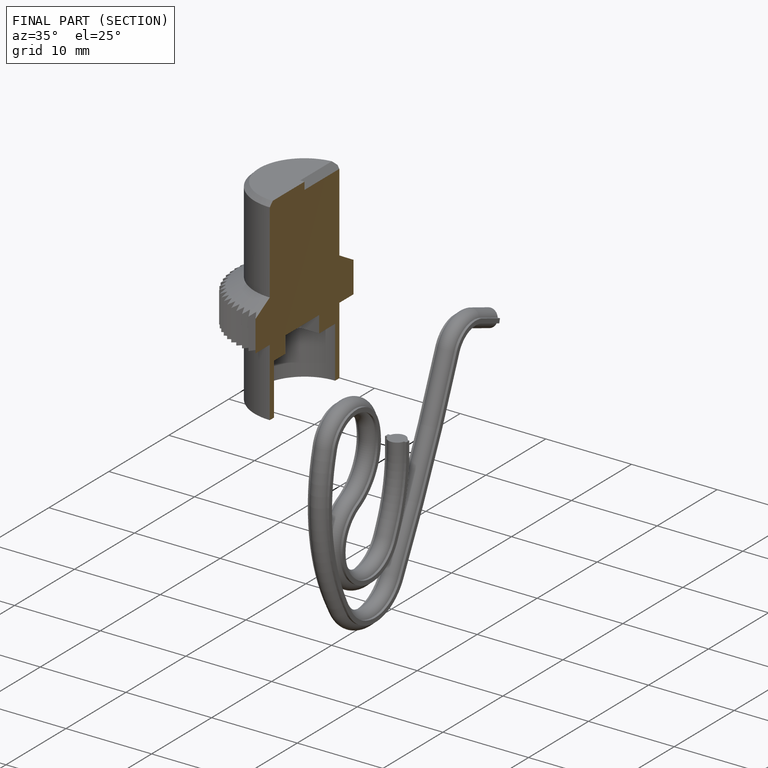
[diagram: finished part — half-section view (interior)]
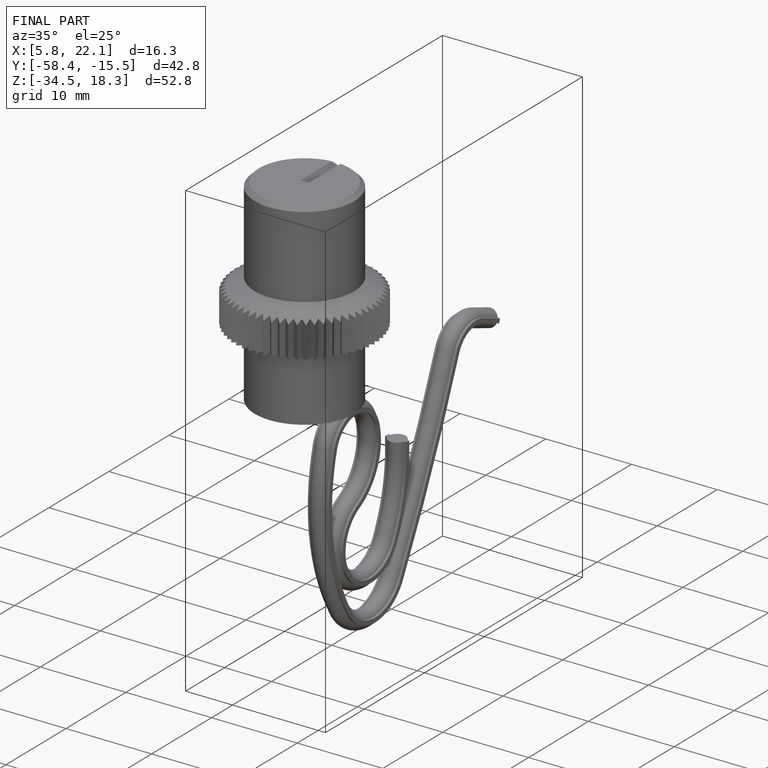
[diagram: finished part — iso view with bounding-box wireframe]
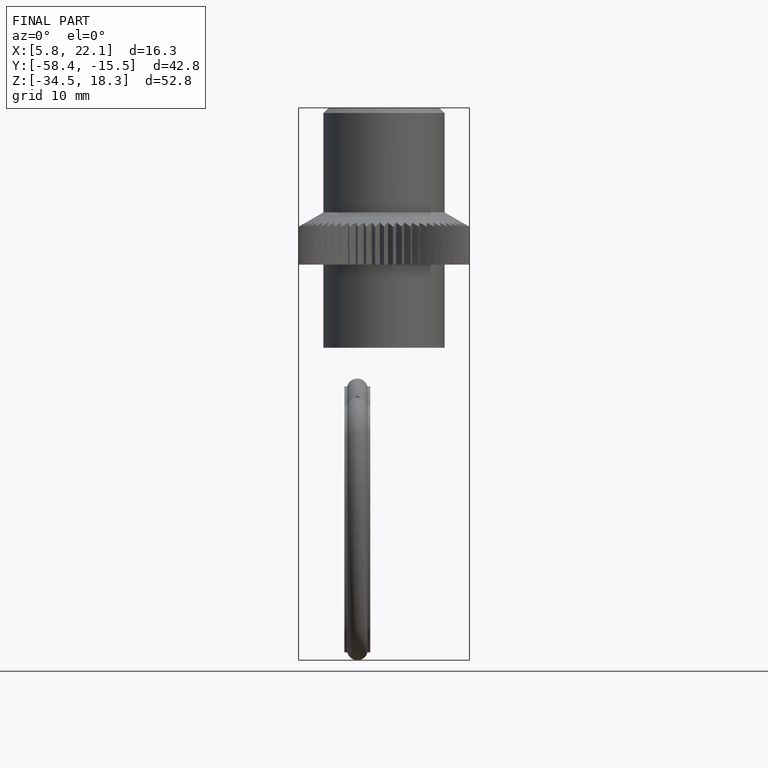
[diagram: finished part — front view with bounding-box wireframe]
